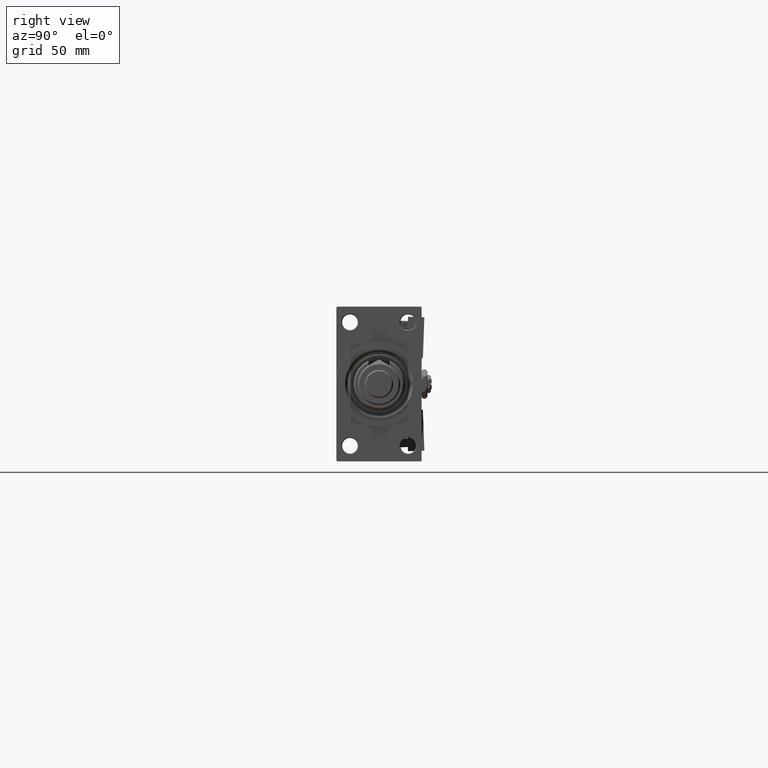
[diagram: clean part render]
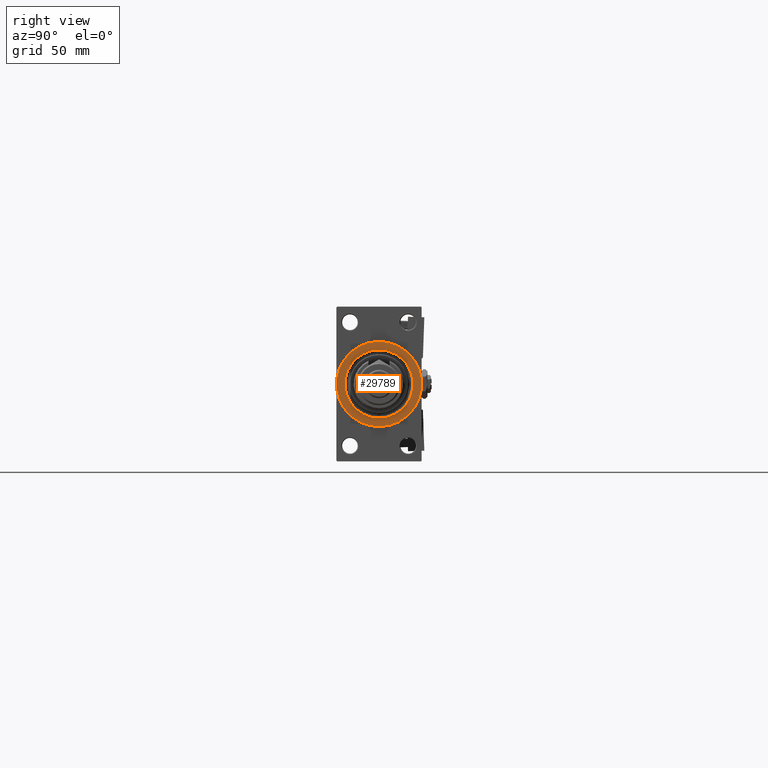
[diagram: same view with one face highlighted and labeled with its STEP entity id]
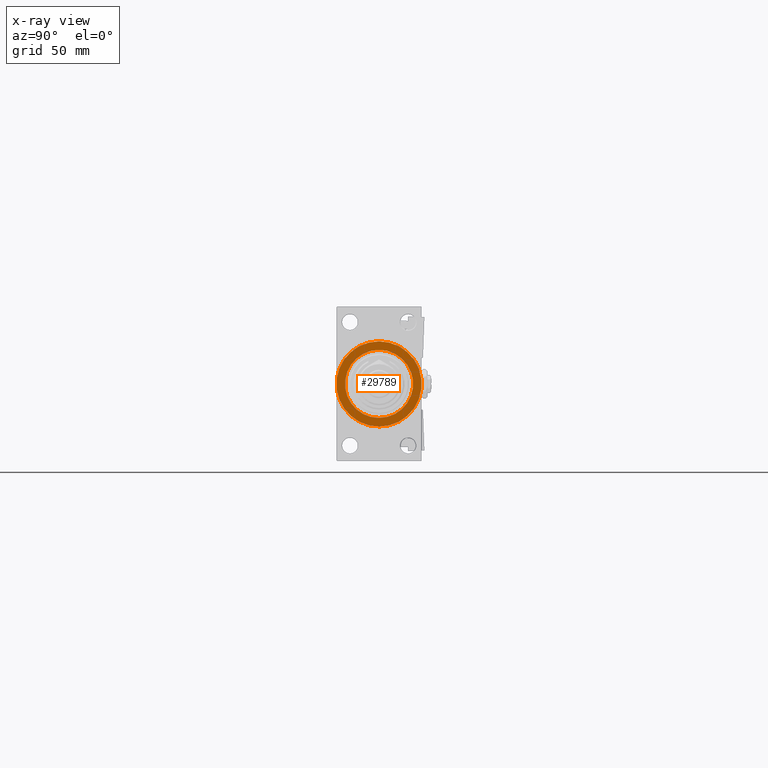
[diagram: x-ray of the same camera — body ghosted, the highlighted face saturated]
A machine part, right view. The second image highlights one B-rep face of the part: STEP entity #29789.
The next image is the same camera in x-ray: the body ghosted, the highlighted face saturated — about 0% of this face is hidden behind the body in this view.
In plain terms, the highlighted planar face has unit normal (1, 0, 0).
Its self-contained STEP definition (entity closure, byte-faithful):
#442 = EDGE_CURVE ( 'NONE', #51089, #12170, #11080, .T. ) ;
#2167 = DIRECTION ( 'NONE',  ( 0.000000000000000000, 0.000000000000000000, -1.000000000000000000 ) ) ;
#2490 = CARTESIAN_POINT ( 'NONE',  ( 377.9999999999999432, 0.000000000000000000, -24.00000000000002487 ) ) ;
#7162 = CARTESIAN_POINT ( 'NONE',  ( 377.9999999999999432, 0.000000000000000000, 0.000000000000000000 ) ) ;
#10466 = DIRECTION ( 'NONE',  ( 1.000000000000000000, 0.000000000000000000, 0.000000000000000000 ) ) ;
#10672 = EDGE_CURVE ( 'NONE', #12170, #51089, #50015, .T. ) ;
#11080 = CIRCLE ( 'NONE', #32271, 30.00000000000000000 ) ;
#11701 = ORIENTED_EDGE ( 'NONE', *, *, #10672, .T. ) ;
#12170 = VERTEX_POINT ( 'NONE', #15884 ) ;
#13842 = DIRECTION ( 'NONE',  ( 0.000000000000000000, 0.000000000000000000, -1.000000000000000000 ) ) ;
#14344 = CARTESIAN_POINT ( 'NONE',  ( 377.9999999999999432, 2.939152317953650655E-15, 24.00000000000002487 ) ) ;
#14625 = CARTESIAN_POINT ( 'NONE',  ( 377.9999999999999432, 0.000000000000000000, 0.000000000000000000 ) ) ;
#15884 = CARTESIAN_POINT ( 'NONE',  ( 377.9999999999999432, 3.673940397442059178E-15, -30.00000000000000000 ) ) ;
#18034 = CARTESIAN_POINT ( 'NONE',  ( 377.9999999999999432, 0.000000000000000000, 30.00000000000000000 ) ) ;
#19058 = DIRECTION ( 'NONE',  ( 0.000000000000000000, 0.000000000000000000, -1.000000000000000000 ) ) ;
#20125 = CARTESIAN_POINT ( 'NONE',  ( 377.9999999999999432, 0.000000000000000000, 0.000000000000000000 ) ) ;
#21944 = EDGE_LOOP ( 'NONE', ( #53749, #11701 ) ) ;
#23058 = AXIS2_PLACEMENT_3D ( 'NONE', #20125, #53549, #36980 ) ;
#23356 = EDGE_CURVE ( 'NONE', #35988, #37308, #26623, .T. ) ;
#24004 = ORIENTED_EDGE ( 'NONE', *, *, #23356, .T. ) ;
#24097 = AXIS2_PLACEMENT_3D ( 'NONE', #51682, #42314, #13842 ) ;
#25020 = ORIENTED_EDGE ( 'NONE', *, *, #25290, .T. ) ;
#25290 = EDGE_CURVE ( 'NONE', #37308, #35988, #48730, .T. ) ;
#26623 = CIRCLE ( 'NONE', #23058, 24.00000000000002487 ) ;
#28438 = AXIS2_PLACEMENT_3D ( 'NONE', #52219, #31781, #19058 ) ;
#29789 = ADVANCED_FACE ( 'NONE', ( #38442, #43132 ), #34849, .T. ) ;
#31781 = DIRECTION ( 'NONE',  ( -1.000000000000000000, -0.000000000000000000, -0.000000000000000000 ) ) ;
#32271 = AXIS2_PLACEMENT_3D ( 'NONE', #7162, #52488, #48078 ) ;
#34849 = PLANE ( 'NONE',  #24097 ) ;
#35988 = VERTEX_POINT ( 'NONE', #2490 ) ;
#36980 = DIRECTION ( 'NONE',  ( 0.000000000000000000, 0.000000000000000000, -1.000000000000000000 ) ) ;
#37308 = VERTEX_POINT ( 'NONE', #14344 ) ;
#38442 = FACE_BOUND ( 'NONE', #45863, .T. ) ;
#42314 = DIRECTION ( 'NONE',  ( 1.000000000000000000, 0.000000000000000000, 0.000000000000000000 ) ) ;
#43132 = FACE_OUTER_BOUND ( 'NONE', #21944, .T. ) ;
#45863 = EDGE_LOOP ( 'NONE', ( #24004, #25020 ) ) ;
#48078 = DIRECTION ( 'NONE',  ( 0.000000000000000000, 0.000000000000000000, -1.000000000000000000 ) ) ;
#48730 = CIRCLE ( 'NONE', #28438, 24.00000000000002487 ) ;
#50015 = CIRCLE ( 'NONE', #53520, 30.00000000000000000 ) ;
#51089 = VERTEX_POINT ( 'NONE', #18034 ) ;
#51682 = CARTESIAN_POINT ( 'NONE',  ( 377.9999999999999432, 0.000000000000000000, 0.000000000000000000 ) ) ;
#52219 = CARTESIAN_POINT ( 'NONE',  ( 377.9999999999999432, 0.000000000000000000, 0.000000000000000000 ) ) ;
#52488 = DIRECTION ( 'NONE',  ( 1.000000000000000000, 0.000000000000000000, 0.000000000000000000 ) ) ;
#53520 = AXIS2_PLACEMENT_3D ( 'NONE', #14625, #10466, #2167 ) ;
#53549 = DIRECTION ( 'NONE',  ( -1.000000000000000000, -0.000000000000000000, -0.000000000000000000 ) ) ;
#53749 = ORIENTED_EDGE ( 'NONE', *, *, #442, .T. ) ;